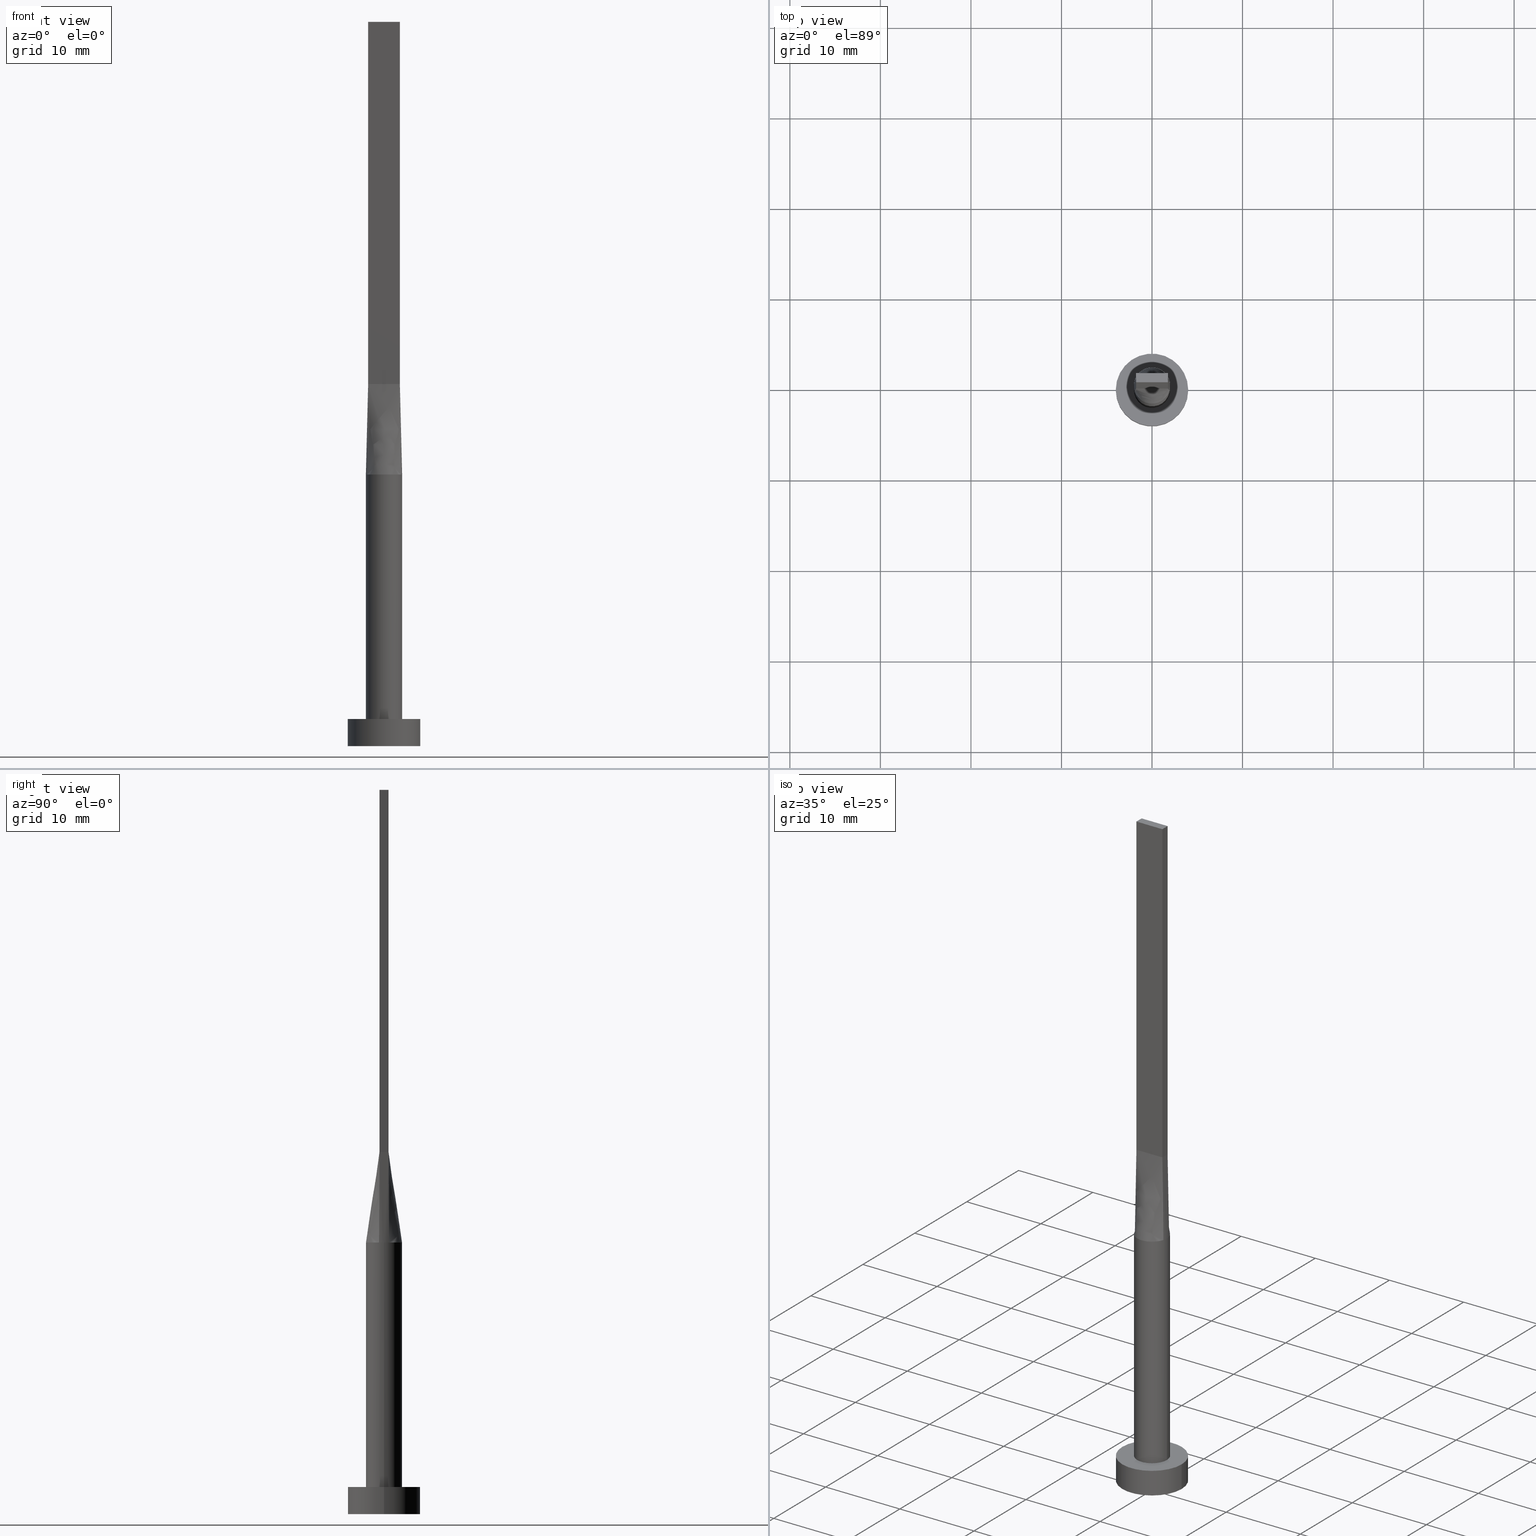
[diagram: canonical four-view strip — front | top / right | iso, engineering-drawing reading convention]
A machine part, canonical four-view strip (front | top / right | iso — engineering-drawing reading convention). The complete STEP part file that produces these views, byte-faithful:
ISO-10303-21;
HEADER;
FILE_DESCRIPTION (( 'STEP AP203' ),
    '1' );
FILE_NAME ('88ec.STEP',
    '2023-02-13T13:55:01',
    ( '' ),
    ( '' ),
    'SwSTEP 2.0',
    'SolidWorks 2019',
    '' );
FILE_SCHEMA (( 'CONFIG_CONTROL_DESIGN' ));
ENDSEC;

DATA;
#1 = LINE ( 'NONE', #316, #153 ) ;
#2 = ORIENTED_EDGE ( 'NONE', *, *, #421, .T. ) ;
#3 = FACE_OUTER_BOUND ( 'NONE', #441, .T. ) ;
#4 = CARTESIAN_POINT ( 'NONE',  ( 1.749999999999999778, 0.5000000000000002220, 80.00000000000000000 ) ) ;
#5 = APPROVAL ( #173, 'NEUR�EN�' ) ;
#6 = CARTESIAN_POINT ( 'NONE',  ( 0.9545234919502409987, 1.774214358793529955, 30.00000000000000355 ) ) ;
#7 = AXIS2_PLACEMENT_3D ( 'NONE', #301, #487, #79 ) ;
#8 = CARTESIAN_POINT ( 'NONE',  ( 0.000000000000000000, 0.000000000000000000, 0.000000000000000000 ) ) ;
#9 = PRODUCT_DEFINITION_FORMATION_WITH_SPECIFIED_SOURCE ( 'LIBOVOLN�', '', #111, .NOT_KNOWN. ) ;
#10 = CARTESIAN_POINT ( 'NONE',  ( 0.000000000000000000, 0.000000000000000000, 30.00000000000000000 ) ) ;
#11 = DIRECTION ( 'NONE',  ( 0.000000000000000000, -1.000000000000000000, 0.000000000000000000 ) ) ;
#12 = CARTESIAN_POINT ( 'NONE',  ( 0.000000000000000000, 0.000000000000000000, 3.000000000000000000 ) ) ;
#13 = FACE_OUTER_BOUND ( 'NONE', #107, .T. ) ;
#14 = PLANE ( 'NONE',  #362 ) ;
#15 = FACE_OUTER_BOUND ( 'NONE', #110, .T. ) ;
#16 = ORIENTED_EDGE ( 'NONE', *, *, #333, .T. ) ;
#17 = EDGE_CURVE ( 'NONE', #19, #537, #539, .T. ) ;
#18 = CARTESIAN_POINT ( 'NONE',  ( -1.812374357931689994, -0.8669367617086277678, 30.00000000000000355 ) ) ;
#19 = VERTEX_POINT ( 'NONE', #126 ) ;
#20 = CARTESIAN_POINT ( 'NONE',  ( 4.000000000000000000, 4.898587196589412829E-16, 0.000000000000000000 ) ) ;
#21 = EDGE_LOOP ( 'NONE', ( #294, #379, #245, #402 ) ) ;
#22 = PERSON_AND_ORGANIZATION_ROLE ( 'design_supplier' ) ;
#23 = CARTESIAN_POINT ( 'NONE',  ( -0.9545234919502401105, 1.774214358793530177, 30.00000000000000355 ) ) ;
#24 = EDGE_LOOP ( 'NONE', ( #290, #80 ) ) ;
#25 = DIRECTION ( 'NONE',  ( 1.000000000000000000, 0.000000000000000000, -0.000000000000000000 ) ) ;
#26 = EDGE_LOOP ( 'NONE', ( #467, #383, #65, #420 ) ) ;
#27 = CARTESIAN_POINT ( 'NONE',  ( 1.604166666666666519, -0.4999999999999997780, 39.99999999999999289 ) ) ;
#28 = AXIS2_PLACEMENT_3D ( 'NONE', #455, #460, #414 ) ;
#29 = CARTESIAN_POINT ( 'NONE',  ( -4.000000000000000000, 0.000000000000000000, 3.000000000000000000 ) ) ;
#30 = MECHANICAL_CONTEXT ( 'NONE', #73, 'mechanical' ) ;
#31 = AXIS2_PLACEMENT_3D ( 'NONE', #106, #284, #152 ) ;
#32 = AXIS2_PLACEMENT_3D ( 'NONE', #503, #359, #541 ) ;
#33 = DIRECTION ( 'NONE',  ( -0.000000000000000000, -0.000000000000000000, -1.000000000000000000 ) ) ;
#34 = ORIENTED_EDGE ( 'NONE', *, *, #113, .T. ) ;
#35 = B_SPLINE_SURFACE_WITH_KNOTS ( 'NONE', 3, 1, ( 
 ( #370, #191 ),
 ( #547, #137 ),
 ( #54, #416 ),
 ( #550, #50 ),
 ( #98, #93 ),
 ( #499, #237 ) ),
 .UNSPECIFIED., .F., .F., .F.,
 ( 4, 2, 4 ),
 ( 2, 2 ),
 ( 0.000000000000000000, 0.5000000000000000000, 1.000000000000000000 ),
 ( 0.000000000000000000, 1.000000000000000000 ),
 .UNSPECIFIED. ) ;
#36 = CARTESIAN_POINT ( 'NONE',  ( 1.749999999999999778, 0.5000000000000002220, 40.00000000000000000 ) ) ;
#37 = DIRECTION ( 'NONE',  ( -0.000000000000000000, -0.000000000000000000, -1.000000000000000000 ) ) ;
#38 = ADVANCED_FACE ( 'NONE', ( #447 ), #302, .F. ) ;
#39 = FACE_OUTER_BOUND ( 'NONE', #198, .T. ) ;
#40 = ORIENTED_EDGE ( 'NONE', *, *, #553, .F. ) ;
#41 = AXIS2_PLACEMENT_3D ( 'NONE', #304, #481, #119 ) ;
#42 = DIRECTION ( 'NONE',  ( 0.000000000000000000, 0.000000000000000000, 1.000000000000000000 ) ) ;
#43 = CARTESIAN_POINT ( 'NONE',  ( 1.750000000000000000, -0.4999999999999997780, 80.00000000000000000 ) ) ;
#44 = DIRECTION ( 'NONE',  ( 0.000000000000000000, 0.000000000000000000, 1.000000000000000000 ) ) ;
#45 = DIRECTION ( 'NONE',  ( -1.000000000000000000, 0.000000000000000000, 0.000000000000000000 ) ) ;
#46 = ADVANCED_FACE ( 'NONE', ( #395 ), #228, .T. ) ;
#47 = CARTESIAN_POINT ( 'NONE',  ( 0.5022746254375803909, 1.951069421695587947, 29.99999999999999645 ) ) ;
#48 = DIRECTION ( 'NONE',  ( -0.01730198768854152372, -0.004943425053868953992, -0.9998380887777591486 ) ) ;
#49 = DIRECTION ( 'NONE',  ( -0.000000000000000000, -0.000000000000000000, -1.000000000000000000 ) ) ;
#50 = CARTESIAN_POINT ( 'NONE',  ( 1.749999999999999778, 0.1666666666666669905, 39.99999999999999289 ) ) ;
#51 = CARTESIAN_POINT ( 'NONE',  ( -1.750000000000000000, -0.4999999999999995559, 40.00000000000000000 ) ) ;
#52 = CARTESIAN_POINT ( 'NONE',  ( 1.155438169178558461, 1.647245198242353714, 29.99999999999999645 ) ) ;
#53 = EDGE_CURVE ( 'NONE', #131, #555, #400, .T. ) ;
#54 = CARTESIAN_POINT ( 'NONE',  ( 1.999999999999999556, -0.1867399261870124894, 30.00000000000000355 ) ) ;
#55 = DIRECTION ( 'NONE',  ( -1.000000000000000000, 6.195440985631454085E-17, 0.000000000000000000 ) ) ;
#56 = VERTEX_POINT ( 'NONE', #404 ) ;
#57 = CARTESIAN_POINT ( 'NONE',  ( -1.749999999999999778, 0.5000000000000002220, 40.00000000000000000 ) ) ;
#58 = VERTEX_POINT ( 'NONE', #356 ) ;
#59 = PERSON_AND_ORGANIZATION ( #63, #88 ) ;
#60 = FACE_OUTER_BOUND ( 'NONE', #391, .T. ) ;
#61 = ORIENTED_EDGE ( 'NONE', *, *, #235, .F. ) ;
#62 = CARTESIAN_POINT ( 'NONE',  ( 0.000000000000000000, 0.000000000000000000, 0.000000000000000000 ) ) ;
#63 = PERSON ( 'NEUR�EN�', 'NEUR�EN�', 'NEUR�EN�', ('NEUR�EN�'), ('NEUR�EN�'), ('NEUR�EN�') ) ;
#64 = CARTESIAN_POINT ( 'NONE',  ( -1.155438169178558461, -1.647245198242353714, 30.00000000000000355 ) ) ;
#65 = ORIENTED_EDGE ( 'NONE', *, *, #174, .F. ) ;
#66 = VECTOR ( 'NONE', #45, 1000.000000000000000 ) ;
#67 = CARTESIAN_POINT ( 'NONE',  ( 1.923154993136894975, 0.5494733089275741778, 30.00000000000000000 ) ) ;
#68 = ORIENTED_EDGE ( 'NONE', *, *, #540, .T. ) ;
#69 = DATE_TIME_ROLE ( 'classification_date' ) ;
#70 = DIRECTION ( 'NONE',  ( 0.000000000000000000, 0.000000000000000000, 1.000000000000000000 ) ) ;
#71 = EDGE_CURVE ( 'NONE', #56, #334, #485, .T. ) ;
#72 = ORIENTED_EDGE ( 'NONE', *, *, #353, .F. ) ;
#73 = APPLICATION_CONTEXT ( 'configuration controlled 3d designs of mechanical parts and assemblies' ) ;
#74 = DATE_AND_TIME ( #164, #488 ) ;
#75 = CARTESIAN_POINT ( 'NONE',  ( -0.2916666666666685725, -0.4999999999999995559, 39.99999999999999289 ) ) ;
#76 = CARTESIAN_POINT ( 'NONE',  ( 1.750000000000000000, -0.4999999999999997780, 80.00000000000000000 ) ) ;
#77 = VECTOR ( 'NONE', #498, 1000.000000000000227 ) ;
#78 = CC_DESIGN_APPROVAL ( #209, ( #9 ) ) ;
#79 = DIRECTION ( 'NONE',  ( 1.000000000000000000, 0.000000000000000000, 0.000000000000000000 ) ) ;
#80 = ORIENTED_EDGE ( 'NONE', *, *, #388, .F. ) ;
#81 = PRODUCT_DEFINITION ( 'NEZN�M�', '', #9, #456 ) ;
#82 = CARTESIAN_POINT ( 'NONE',  ( 1.923154993136894975, 0.5494733089275741778, 30.00000000000000000 ) ) ;
#83 = DIRECTION ( 'NONE',  ( 1.000000000000000000, 0.000000000000000000, 0.000000000000000000 ) ) ;
#84 = CARTESIAN_POINT ( 'NONE',  ( 2.000000000000000000, 2.449293598294706414E-16, 3.000000000000000000 ) ) ;
#85 = ORIENTED_EDGE ( 'NONE', *, *, #372, .T. ) ;
#86 = AXIS2_PLACEMENT_3D ( 'NONE', #12, #49, #377 ) ;
#87 = CARTESIAN_POINT ( 'NONE',  ( -1.749999999999999778, 0.5000000000000002220, 80.00000000000000000 ) ) ;
#88 = ORGANIZATION ( 'NEUR�EN�', 'NEUR�EN�', '' ) ;
#89 = LINE ( 'NONE', #4, #280 ) ;
#90 = PLANE ( 'NONE',  #345 ) ;
#91 = CARTESIAN_POINT ( 'NONE',  ( 0.5833333333333323711, 0.5000000000000002220, 39.99999999999999289 ) ) ;
#92 = CARTESIAN_POINT ( 'NONE',  ( -0.5022746254375797248, 1.951069421695588169, 29.99999999999999645 ) ) ;
#93 = CARTESIAN_POINT ( 'NONE',  ( 1.749999999999999778, 0.3333333333333335924, 39.99999999999999289 ) ) ;
#94 = EDGE_CURVE ( 'NONE', #387, #101, #317, .T. ) ;
#95 = DIRECTION ( 'NONE',  ( 0.000000000000000000, 0.000000000000000000, 1.000000000000000000 ) ) ;
#96 = CARTESIAN_POINT ( 'NONE',  ( 1.879022738048942154, 0.7035303061092218480, 30.00000000000000355 ) ) ;
#97 = CC_DESIGN_PERSON_AND_ORGANIZATION_ASSIGNMENT ( #298, #22, ( #9 ) ) ;
#98 = CARTESIAN_POINT ( 'NONE',  ( 1.973362360690451567, 0.3733416268639386804, 30.00000000000000355 ) ) ;
#99 = ORIENTED_EDGE ( 'NONE', *, *, #203, .F. ) ;
#100 = CARTESIAN_POINT ( 'NONE',  ( -1.166666666666666519, 0.5000000000000002220, 39.99999999999999289 ) ) ;
#101 = VERTEX_POINT ( 'NONE', #29 ) ;
#102 = CARTESIAN_POINT ( 'NONE',  ( -1.749999999999999778, 0.3333333333333334259, 39.99999999999999289 ) ) ;
#103 = EDGE_CURVE ( 'NONE', #474, #537, #217, .T. ) ;
#104 = VERTEX_POINT ( 'NONE', #124 ) ;
#105 = DIRECTION ( 'NONE',  ( 2.168404344971009361E-16, 1.000000000000000000, 0.000000000000000000 ) ) ;
#106 = CARTESIAN_POINT ( 'NONE',  ( 0.000000000000000000, 0.000000000000000000, 3.000000000000000000 ) ) ;
#107 = EDGE_LOOP ( 'NONE', ( #559, #427, #398, #201, #120 ) ) ;
#108 = SECURITY_CLASSIFICATION_LEVEL ( 'unclassified' ) ;
#109 = CARTESIAN_POINT ( 'NONE',  ( -1.020833333333334592, -0.4999999999999995559, 39.99999999999999289 ) ) ;
#110 = EDGE_LOOP ( 'NONE', ( #308, #358, #469, #569 ) ) ;
#111 = PRODUCT ( '88ec', '88ec', '', ( #30 ) ) ;
#112 = APPROVAL_ROLE ( '' ) ;
#113 = EDGE_CURVE ( 'NONE', #104, #58, #89, .T. ) ;
#114 = CARTESIAN_POINT ( 'NONE',  ( -0.5833333333333339255, 0.5000000000000002220, 39.99999999999999289 ) ) ;
#115 = ORIENTED_EDGE ( 'NONE', *, *, #53, .F. ) ;
#116 = VECTOR ( 'NONE', #254, 1000.000000000000000 ) ;
#117 = PERSON_AND_ORGANIZATION ( #63, #88 ) ;
#118 = CC_DESIGN_PERSON_AND_ORGANIZATION_ASSIGNMENT ( #566, #160, ( #111 ) ) ;
#119 = DIRECTION ( 'NONE',  ( 1.000000000000000000, 0.000000000000000000, 0.000000000000000000 ) ) ;
#120 = ORIENTED_EDGE ( 'NONE', *, *, #103, .F. ) ;
#121 = APPROVAL_DATE_TIME ( #291, #5 ) ;
#122 = CARTESIAN_POINT ( 'NONE',  ( -4.000000000000000000, 0.000000000000000000, 0.000000000000000000 ) ) ;
#123 = EDGE_CURVE ( 'NONE', #354, #252, #192, .T. ) ;
#124 = CARTESIAN_POINT ( 'NONE',  ( 1.749999999999999778, 0.5000000000000002220, 80.00000000000000000 ) ) ;
#125 = CARTESIAN_POINT ( 'NONE',  ( -0.2514338042514540073, -1.999999999999999112, 29.99999999999999645 ) ) ;
#126 = CARTESIAN_POINT ( 'NONE',  ( 1.750000000000000000, -0.4999999999999997780, 80.00000000000000000 ) ) ;
#127 = EDGE_CURVE ( 'NONE', #493, #519, #278, .T. ) ;
#128 = CARTESIAN_POINT ( 'NONE',  ( 0.000000000000000000, 0.000000000000000000, 80.00000000000000000 ) ) ;
#129 = CARTESIAN_POINT ( 'NONE',  ( 2.000000000000000000, 2.449293598294706414E-16, 30.00000000000000000 ) ) ;
#130 = CARTESIAN_POINT ( 'NONE',  ( 1.616149014776643522, 1.193458220519943103, 30.00000000000000000 ) ) ;
#131 = VERTEX_POINT ( 'NONE', #144 ) ;
#132 = EDGE_CURVE ( 'NONE', #101, #354, #502, .T. ) ;
#133 = CARTESIAN_POINT ( 'NONE',  ( -1.486037034853319616, 1.356520562679218056, 30.00000000000000355 ) ) ;
#134 = DIRECTION ( 'NONE',  ( -1.000000000000000000, 0.000000000000000000, 0.000000000000000000 ) ) ;
#135 = VECTOR ( 'NONE', #549, 1000.000000000000000 ) ;
#136 = CYLINDRICAL_SURFACE ( 'NONE', #86, 4.000000000000000000 ) ;
#137 = CARTESIAN_POINT ( 'NONE',  ( 1.749999999999999778, -0.3333333333333330373, 39.99999999999999289 ) ) ;
#138 = CARTESIAN_POINT ( 'NONE',  ( 0.000000000000000000, 0.000000000000000000, 0.000000000000000000 ) ) ;
#139 = CYLINDRICAL_SURFACE ( 'NONE', #461, 2.000000000000000000 ) ;
#140 = DIRECTION ( 'NONE',  ( 1.000000000000000000, -6.195440985631454085E-17, 0.000000000000000000 ) ) ;
#141 = CARTESIAN_POINT ( 'NONE',  ( 1.749999999999999778, 0.5000000000000002220, 80.00000000000000000 ) ) ;
#142 = AXIS2_PLACEMENT_3D ( 'NONE', #580, #178, #297 ) ;
#143 = ADVANCED_FACE ( 'NONE', ( #496 ), #139, .T. ) ;
#144 = CARTESIAN_POINT ( 'NONE',  ( -1.923179810488875541, 0.5494804890868837388, 30.00000000000000000 ) ) ;
#145 = ADVANCED_FACE ( 'NONE', ( #13 ), #35, .T. ) ;
#146 = CARTESIAN_POINT ( 'NONE',  ( -0.2514338042514528415, 1.999999999999999556, 30.00000000000001066 ) ) ;
#147 = CARTESIAN_POINT ( 'NONE',  ( -1.879022738048942598, -0.7035303061092208488, 30.00000000000000355 ) ) ;
#148 = EDGE_LOOP ( 'NONE', ( #181, #340, #99, #34 ) ) ;
#149 = AXIS2_PLACEMENT_3D ( 'NONE', #43, #576, #258 ) ;
#150 = CARTESIAN_POINT ( 'NONE',  ( -1.749999999999999778, 0.5000000000000002220, 80.00000000000000000 ) ) ;
#151 = VECTOR ( 'NONE', #37, 1000.000000000000000 ) ;
#152 = DIRECTION ( 'NONE',  ( 1.000000000000000000, 0.000000000000000000, 0.000000000000000000 ) ) ;
#153 = VECTOR ( 'NONE', #458, 1000.000000000000000 ) ;
#154 = ORIENTED_EDGE ( 'NONE', *, *, #421, .F. ) ;
#155 = LOCAL_TIME ( 14, 55, 1.000000000000000000, #480 ) ;
#156 = APPROVAL_STATUS ( 'not_yet_approved' ) ;
#157 = B_SPLINE_SURFACE_WITH_KNOTS ( 'NONE', 3, 1, ( 
 ( #504, #230 ),
 ( #96, #360 ),
 ( #459, #417 ),
 ( #273, #542 ),
 ( #407, #277 ),
 ( #52, #239 ),
 ( #186, #91 ),
 ( #452, #511 ),
 ( #465, #246 ),
 ( #146, #197 ),
 ( #521, #331 ),
 ( #23, #114 ),
 ( #324, #339 ),
 ( #336, #425 ),
 ( #382, #100 ),
 ( #516, #286 ),
 ( #554, #564 ),
 ( #509, #161 ) ),
 .UNSPECIFIED., .F., .F., .F.,
 ( 4, 2, 2, 2, 2, 2, 2, 2, 4 ),
 ( 2, 2 ),
 ( 0.000000000000000000, 0.1249999999999999722, 0.2500000000000000000, 0.3750000000000000000, 0.5000000000000001110, 0.6250000000000001110, 0.7500000000000000000, 0.8750000000000000000, 1.000000000000000000 ),
 ( 0.000000000000000000, 1.000000000000000000 ),
 .UNSPECIFIED. ) ;
#158 = CARTESIAN_POINT ( 'NONE',  ( -1.923047895281646547, -0.5494422557947552521, 30.00000000000000000 ) ) ;
#159 = ORIENTED_EDGE ( 'NONE', *, *, #127, .F. ) ;
#160 = PERSON_AND_ORGANIZATION_ROLE ( 'design_owner' ) ;
#161 = CARTESIAN_POINT ( 'NONE',  ( -1.749999999999999778, 0.5000000000000002220, 40.00000000000000000 ) ) ;
#162 = EDGE_LOOP ( 'NONE', ( #2, #423, #61, #439 ) ) ;
#163 = APPROVAL ( #256, 'NEUR�EN�' ) ;
#164 = CALENDAR_DATE ( 2023, 13, 2 ) ;
#165 = VECTOR ( 'NONE', #48, 1000.000000000000227 ) ;
#166 = LINE ( 'NONE', #393, #535 ) ;
#167 = ORIENTED_EDGE ( 'NONE', *, *, #508, .F. ) ;
#168 = APPROVAL_PERSON_ORGANIZATION ( #211, #5, #112 ) ;
#169 = ADVANCED_FACE ( 'NONE', ( #270, #313 ), #371, .T. ) ;
#170 = APPROVAL_PERSON_ORGANIZATION ( #385, #163, #434 ) ;
#171 = CARTESIAN_POINT ( 'NONE',  ( 4.000000000000000000, 4.898587196589412829E-16, 3.000000000000000000 ) ) ;
#172 = ORIENTED_EDGE ( 'NONE', *, *, #319, .F. ) ;
#173 = APPROVAL_STATUS ( 'not_yet_approved' ) ;
#174 = EDGE_CURVE ( 'NONE', #464, #572, #410, .T. ) ;
#175 = CARTESIAN_POINT ( 'NONE',  ( -0.5833333333333350357, -0.4999999999999995559, 39.99999999999999289 ) ) ;
#176 = ORIENTED_EDGE ( 'NONE', *, *, #132, .T. ) ;
#177 = CARTESIAN_POINT ( 'NONE',  ( -2.000000000000000000, 0.000000000000000000, 30.00000000000000000 ) ) ;
#178 = DIRECTION ( 'NONE',  ( -0.000000000000000000, -0.000000000000000000, -1.000000000000000000 ) ) ;
#179 = CIRCLE ( 'NONE', #195, 2.000000000000000000 ) ;
#180 = CARTESIAN_POINT ( 'NONE',  ( -2.000000000000000000, 8.710755549421510381E-17, 30.00000000000000000 ) ) ;
#181 = ORIENTED_EDGE ( 'NONE', *, *, #235, .T. ) ;
#182 = ADVANCED_FACE ( 'NONE', ( #368 ), #14, .F. ) ;
#183 = FACE_OUTER_BOUND ( 'NONE', #24, .T. ) ;
#184 = EDGE_LOOP ( 'NONE', ( #489, #522, #176, #482 ) ) ;
#185 = CARTESIAN_POINT ( 'NONE',  ( -1.812374357931688884, 0.8669367617086288780, 30.00000000000001066 ) ) ;
#186 = CARTESIAN_POINT ( 'NONE',  ( 0.9545234919502409987, 1.774214358793529955, 30.00000000000000355 ) ) ;
#187 = CARTESIAN_POINT ( 'NONE',  ( -1.616149014776643966, 1.193458220519943103, 30.00000000000000711 ) ) ;
#188 = CARTESIAN_POINT ( 'NONE',  ( -1.749999999999999778, 0.5000000000000002220, 80.00000000000000000 ) ) ;
#189 = DIRECTION ( 'NONE',  ( 1.000000000000000000, 3.552713678800500929E-15, 0.000000000000000000 ) ) ;
#190 = LINE ( 'NONE', #240, #66 ) ;
#191 = CARTESIAN_POINT ( 'NONE',  ( 1.750000000000000000, -0.4999999999999997780, 40.00000000000000000 ) ) ;
#192 = CIRCLE ( 'NONE', #341, 4.000000000000000000 ) ;
#193 = AXIS2_PLACEMENT_3D ( 'NONE', #399, #70, #357 ) ;
#194 = CARTESIAN_POINT ( 'NONE',  ( -1.973362360690451567, 0.3733416268639390134, 30.00000000000000000 ) ) ;
#195 = AXIS2_PLACEMENT_3D ( 'NONE', #10, #42, #189 ) ;
#196 = CIRCLE ( 'NONE', #457, 2.000000000000000000 ) ;
#197 = CARTESIAN_POINT ( 'NONE',  ( -0.1458333333333340365, 0.5000000000000002220, 39.99999999999999289 ) ) ;
#198 = EDGE_LOOP ( 'NONE', ( #268, #205, #68, #223 ) ) ;
#199 = CARTESIAN_POINT ( 'NONE',  ( -1.155438169178558017, 1.647245198242353936, 30.00000000000000711 ) ) ;
#200 = CARTESIAN_POINT ( 'NONE',  ( -1.166666666666667851, -0.4999999999999995559, 39.99999999999999289 ) ) ;
#201 = ORIENTED_EDGE ( 'NONE', *, *, #372, .F. ) ;
#202 = COORDINATED_UNIVERSAL_TIME_OFFSET ( 1, 0, .AHEAD. ) ;
#203 = EDGE_CURVE ( 'NONE', #104, #464, #190, .T. ) ;
#204 = CARTESIAN_POINT ( 'NONE',  ( -1.973362360690451345, -0.3733416268639377367, 30.00000000000000355 ) ) ;
#205 = ORIENTED_EDGE ( 'NONE', *, *, #174, .T. ) ;
#206 = DATE_AND_TIME ( #470, #155 ) ;
#207 = B_SPLINE_SURFACE_WITH_KNOTS ( 'NONE', 3, 1, ( 
 ( #378, #208 ),
 ( #147, #326 ),
 ( #18, #518 ),
 ( #472, #200 ),
 ( #558, #109 ),
 ( #64, #251 ),
 ( #429, #175 ),
 ( #307, #75 ),
 ( #125, #435 ),
 ( #216, #533 ),
 ( #397, #567 ),
 ( #224, #344 ),
 ( #492, #484 ),
 ( #259, #257 ),
 ( #440, #265 ),
 ( #212, #349 ),
 ( #530, #27 ),
 ( #352, #220 ) ),
 .UNSPECIFIED., .F., .F., .F.,
 ( 4, 2, 2, 2, 2, 2, 2, 2, 4 ),
 ( 2, 2 ),
 ( 0.000000000000000000, 0.1249999999999999722, 0.2500000000000000000, 0.3750000000000000000, 0.5000000000000001110, 0.6250000000000001110, 0.7500000000000000000, 0.8750000000000000000, 1.000000000000000000 ),
 ( 0.000000000000000000, 1.000000000000000000 ),
 .UNSPECIFIED. ) ;
#208 = CARTESIAN_POINT ( 'NONE',  ( -1.750000000000000000, -0.4999999999999995559, 40.00000000000000000 ) ) ;
#209 = APPROVAL ( #156, 'NEUR�EN�' ) ;
#210 = ORIENTED_EDGE ( 'NONE', *, *, #94, .T. ) ;
#211 = PERSON_AND_ORGANIZATION ( #63, #88 ) ;
#212 = CARTESIAN_POINT ( 'NONE',  ( 1.812374357931689106, -0.8669367617086289890, 30.00000000000001066 ) ) ;
#213 = ORIENTED_EDGE ( 'NONE', *, *, #17, .F. ) ;
#214 = ADVANCED_FACE ( 'NONE', ( #318 ), #157, .T. ) ;
#215 = COORDINATED_UNIVERSAL_TIME_OFFSET ( 1, 0, .AHEAD. ) ;
#216 = CARTESIAN_POINT ( 'NONE',  ( 0.2514338042514523419, -2.000000000000000444, 30.00000000000000000 ) ) ;
#217 = LINE ( 'NONE', #350, #473 ) ;
#218 = PERSON_AND_ORGANIZATION ( #63, #88 ) ;
#219 = EDGE_CURVE ( 'NONE', #101, #387, #282, .T. ) ;
#220 = CARTESIAN_POINT ( 'NONE',  ( 1.750000000000000000, -0.4999999999999997780, 40.00000000000000000 ) ) ;
#221 = ORIENTED_EDGE ( 'NONE', *, *, #432, .F. ) ;
#222 = DIRECTION ( 'NONE',  ( -2.168404344971008868E-16, 1.000000000000000000, -0.000000000000000000 ) ) ;
#223 = ORIENTED_EDGE ( 'NONE', *, *, #319, .T. ) ;
#224 = CARTESIAN_POINT ( 'NONE',  ( 0.9545234919502404436, -1.774214358793530177, 30.00000000000001066 ) ) ;
#225 = ORIENTED_EDGE ( 'NONE', *, *, #312, .T. ) ;
#226 = CIRCLE ( 'NONE', #7, 2.000000000000000000 ) ;
#227 = CARTESIAN_POINT ( 'NONE',  ( 1.750000000000000000, -0.4999999999999997780, 40.00000000000000000 ) ) ;
#228 = CYLINDRICAL_SURFACE ( 'NONE', #142, 4.000000000000000000 ) ;
#229 = DIRECTION ( 'NONE',  ( 1.000000000000000000, 0.000000000000000000, 0.000000000000000000 ) ) ;
#230 = CARTESIAN_POINT ( 'NONE',  ( 1.749999999999998890, 0.5000000000000002220, 40.00000000000000000 ) ) ;
#231 = EDGE_CURVE ( 'NONE', #464, #555, #289, .T. ) ;
#232 = UNCERTAINTY_MEASURE_WITH_UNIT (LENGTH_MEASURE( 1.000000000000000082E-05 ), #475, 'distance_accuracy_value', 'NONE');
#233 = CARTESIAN_POINT ( 'NONE',  ( 1.836523947640823051, 0.5247211278973783477, 35.00000000000000000 ) ) ;
#234 = DIRECTION ( 'NONE',  ( -0.000000000000000000, -0.000000000000000000, -1.000000000000000000 ) ) ;
#235 = EDGE_CURVE ( 'NONE', #58, #555, #279, .T. ) ;
#236 = DIRECTION ( 'NONE',  ( 0.000000000000000000, 0.000000000000000000, 1.000000000000000000 ) ) ;
#237 = CARTESIAN_POINT ( 'NONE',  ( 1.749999999999999778, 0.5000000000000002220, 40.00000000000000000 ) ) ;
#238 = LINE ( 'NONE', #369, #506 ) ;
#239 = CARTESIAN_POINT ( 'NONE',  ( 0.7291666666666657415, 0.5000000000000002220, 39.99999999999999289 ) ) ;
#240 = CARTESIAN_POINT ( 'NONE',  ( 1.749999999999999778, 0.5000000000000002220, 80.00000000000000000 ) ) ;
#241 = ADVANCED_FACE ( 'NONE', ( #462 ), #293, .F. ) ;
#242 = CARTESIAN_POINT ( 'NONE',  ( -1.749999999999999778, 0.1666666666666667129, 39.99999999999999289 ) ) ;
#243 = ORIENTED_EDGE ( 'NONE', *, *, #392, .F. ) ;
#244 = CARTESIAN_POINT ( 'NONE',  ( -1.750000000000000000, -0.4999999999999995559, 80.00000000000000000 ) ) ;
#245 = ORIENTED_EDGE ( 'NONE', *, *, #388, .T. ) ;
#246 = CARTESIAN_POINT ( 'NONE',  ( 0.1458333333333326209, 0.5000000000000002220, 40.00000000000000000 ) ) ;
#247 = ORIENTED_EDGE ( 'NONE', *, *, #392, .T. ) ;
#248 = VECTOR ( 'NONE', #578, 1000.000000000000227 ) ;
#249 = CALENDAR_DATE ( 2023, 13, 2 ) ;
#250 = VECTOR ( 'NONE', #478, 1000.000000000000000 ) ;
#251 = CARTESIAN_POINT ( 'NONE',  ( -0.7291666666666681840, -0.4999999999999995559, 39.99999999999999289 ) ) ;
#252 = VERTEX_POINT ( 'NONE', #20 ) ;
#253 = CALENDAR_DATE ( 2023, 13, 2 ) ;
#254 = DIRECTION ( 'NONE',  ( -0.000000000000000000, -0.000000000000000000, -1.000000000000000000 ) ) ;
#255 = EDGE_LOOP ( 'NONE', ( #225, #213, #517, #512 ) ) ;
#256 = APPROVAL_STATUS ( 'not_yet_approved' ) ;
#257 = CARTESIAN_POINT ( 'NONE',  ( 1.020833333333331927, -0.4999999999999995559, 39.99999999999999289 ) ) ;
#258 = DIRECTION ( 'NONE',  ( 2.168404344971008868E-16, -1.000000000000000000, 0.000000000000000000 ) ) ;
#259 = CARTESIAN_POINT ( 'NONE',  ( 1.486037034853319616, -1.356520562679219166, 30.00000000000001066 ) ) ;
#260 = EDGE_LOOP ( 'NONE', ( #287, #210 ) ) ;
#261 = LOCAL_TIME ( 14, 55, 1.000000000000000000, #202 ) ;
#262 = LOCAL_TIME ( 14, 55, 1.000000000000000000, #215 ) ;
#263 = DIRECTION ( 'NONE',  ( -2.168404344971008868E-16, 1.000000000000000000, 0.000000000000000000 ) ) ;
#264 = CARTESIAN_POINT ( 'NONE',  ( -1.836523947640823051, 0.5247211278973779036, 35.00000000000000000 ) ) ;
#265 = CARTESIAN_POINT ( 'NONE',  ( 1.166666666666665408, -0.4999999999999995559, 39.99999999999999289 ) ) ;
#266 = VERTEX_POINT ( 'NONE', #67 ) ;
#267 = DIRECTION ( 'NONE',  ( 0.000000000000000000, 0.000000000000000000, 1.000000000000000000 ) ) ;
#268 = ORIENTED_EDGE ( 'NONE', *, *, #203, .T. ) ;
#269 = FACE_OUTER_BOUND ( 'NONE', #26, .T. ) ;
#270 = FACE_BOUND ( 'NONE', #337, .T. ) ;
#271 = ADVANCED_FACE ( 'NONE', ( #60 ), #384, .T. ) ;
#272 = CARTESIAN_POINT ( 'NONE',  ( 1.486037034853319616, 1.356520562679217834, 29.99999999999999289 ) ) ;
#273 = CARTESIAN_POINT ( 'NONE',  ( 1.616149014776643522, 1.193458220519943103, 30.00000000000000000 ) ) ;
#274 = DIRECTION ( 'NONE',  ( 1.000000000000000000, 0.000000000000000000, 0.000000000000000000 ) ) ;
#275 = CARTESIAN_POINT ( 'NONE',  ( 0.000000000000000000, 0.000000000000000000, 30.00000000000000000 ) ) ;
#276 = DIRECTION ( 'NONE',  ( 1.000000000000000000, 0.000000000000000000, -0.000000000000000000 ) ) ;
#277 = CARTESIAN_POINT ( 'NONE',  ( 1.020833333333332371, 0.5000000000000002220, 39.99999999999999289 ) ) ;
#278 = LINE ( 'NONE', #364, #165 ) ;
#279 = LINE ( 'NONE', #57, #250 ) ;
#280 = VECTOR ( 'NONE', #310, 1000.000000000000000 ) ;
#281 = ORIENTED_EDGE ( 'NONE', *, *, #17, .T. ) ;
#282 = CIRCLE ( 'NONE', #31, 4.000000000000000000 ) ;
#283 = B_SPLINE_CURVE_WITH_KNOTS ( 'NONE', 3,
 ( #82, #442, #538, #130, #272, #451, #6, #47, #415, #548, #92, #514, #199, #133, #187, #185, #309, #501 ),
 .UNSPECIFIED., .F., .F.,
 ( 4, 2, 2, 2, 2, 2, 2, 2, 4 ),
 ( 0.000000000000000000, 0.1249999999999999722, 0.2500000000000000000, 0.3750000000000000000, 0.5000000000000001110, 0.6250000000000001110, 0.7500000000000000000, 0.8750000000000000000, 1.000000000000000000 ),
 .UNSPECIFIED. ) ;
#284 = DIRECTION ( 'NONE',  ( 0.000000000000000000, 0.000000000000000000, 1.000000000000000000 ) ) ;
#285 = EDGE_LOOP ( 'NONE', ( #565, #433, #376, #72, #247, #16 ) ) ;
#286 = CARTESIAN_POINT ( 'NONE',  ( -1.458333333333333259, 0.5000000000000002220, 39.99999999999999289 ) ) ;
#287 = ORIENTED_EDGE ( 'NONE', *, *, #219, .T. ) ;
#288 = APPLICATION_PROTOCOL_DEFINITION ( 'international standard', 'config_control_design', 1994, #466 ) ;
#289 = LINE ( 'NONE', #386, #116 ) ;
#290 = ORIENTED_EDGE ( 'NONE', *, *, #123, .F. ) ;
#291 = DATE_AND_TIME ( #253, #366 ) ;
#292 = VECTOR ( 'NONE', #222, 1000.000000000000000 ) ;
#293 = PLANE ( 'NONE',  #437 ) ;
#294 = ORIENTED_EDGE ( 'NONE', *, *, #94, .F. ) ;
#295 = PERSON_AND_ORGANIZATION_ROLE ( 'classification_officer' ) ;
#296 = CARTESIAN_POINT ( 'NONE',  ( 4.000000000000000000, 4.898587196589412829E-16, 3.000000000000000000 ) ) ;
#297 = DIRECTION ( 'NONE',  ( -1.000000000000000000, 0.000000000000000000, 0.000000000000000000 ) ) ;
#298 = PERSON_AND_ORGANIZATION ( #63, #88 ) ;
#299 = CARTESIAN_POINT ( 'NONE',  ( -1.750000000000000000, -0.4999999999999995559, 80.00000000000000000 ) ) ;
#300 = ORIENTED_EDGE ( 'NONE', *, *, #551, .F. ) ;
#301 = CARTESIAN_POINT ( 'NONE',  ( 0.000000000000000000, 0.000000000000000000, 30.00000000000000000 ) ) ;
#302 = PLANE ( 'NONE',  #149 ) ;
#303 = ADVANCED_FACE ( 'NONE', ( #15 ), #207, .T. ) ;
#304 = CARTESIAN_POINT ( 'NONE',  ( 0.000000000000000000, 0.000000000000000000, 3.000000000000000000 ) ) ;
#305 = DIRECTION ( 'NONE',  ( -0.000000000000000000, -0.000000000000000000, -1.000000000000000000 ) ) ;
#306 = CC_DESIGN_DATE_AND_TIME_ASSIGNMENT ( #523, #380, ( #81 ) ) ;
#307 = CARTESIAN_POINT ( 'NONE',  ( -0.5022746254375808350, -1.951069421695587724, 29.99999999999999289 ) ) ;
#308 = ORIENTED_EDGE ( 'NONE', *, *, #557, .T. ) ;
#309 = CARTESIAN_POINT ( 'NONE',  ( -1.879022738048941710, 0.7035303061092221810, 30.00000000000000000 ) ) ;
#310 = DIRECTION ( 'NONE',  ( -0.000000000000000000, -0.000000000000000000, -1.000000000000000000 ) ) ;
#311 = PLANE ( 'NONE',  #381 ) ;
#312 = EDGE_CURVE ( 'NONE', #493, #537, #166, .T. ) ;
#313 = FACE_OUTER_BOUND ( 'NONE', #260, .T. ) ;
#314 = CARTESIAN_POINT ( 'NONE',  ( 0.000000000000000000, 0.000000000000000000, 3.000000000000000000 ) ) ;
#315 = CARTESIAN_POINT ( 'NONE',  ( -4.000000000000000000, 0.000000000000000000, 3.000000000000000000 ) ) ;
#316 = CARTESIAN_POINT ( 'NONE',  ( -1.749999999999999778, 0.5000000000000002220, 40.00000000000000000 ) ) ;
#317 = CIRCLE ( 'NONE', #408, 4.000000000000000000 ) ;
#318 = FACE_OUTER_BOUND ( 'NONE', #162, .T. ) ;
#319 = EDGE_CURVE ( 'NONE', #19, #104, #438, .T. ) ;
#320 = CIRCLE ( 'NONE', #32, 2.000000000000000000 ) ;
#321 = DIRECTION ( 'NONE',  ( -0.000000000000000000, -0.000000000000000000, -1.000000000000000000 ) ) ;
#322 = VERTEX_POINT ( 'NONE', #180 ) ;
#323 = CC_DESIGN_PERSON_AND_ORGANIZATION_ASSIGNMENT ( #117, #295, ( #411 ) ) ;
#324 = CARTESIAN_POINT ( 'NONE',  ( -1.155438169178558017, 1.647245198242353936, 30.00000000000000711 ) ) ;
#325 = EDGE_CURVE ( 'NONE', #572, #493, #571, .T. ) ;
#326 = CARTESIAN_POINT ( 'NONE',  ( -1.604166666666666963, -0.4999999999999995559, 39.99999999999999289 ) ) ;
#327 = VERTEX_POINT ( 'NONE', #575 ) ;
#328 = DIRECTION ( 'NONE',  ( 1.000000000000000000, -2.168404344971009361E-16, 0.000000000000000000 ) ) ;
#329 = CIRCLE ( 'NONE', #343, 2.000000000000000000 ) ;
#330 = AXIS2_PLACEMENT_3D ( 'NONE', #128, #267, #25 ) ;
#331 = CARTESIAN_POINT ( 'NONE',  ( -0.2916666666666674623, 0.5000000000000002220, 39.99999999999999289 ) ) ;
#332 = APPROVAL_PERSON_ORGANIZATION ( #389, #209, #335 ) ;
#333 = EDGE_CURVE ( 'NONE', #327, #334, #476, .T. ) ;
#334 = VERTEX_POINT ( 'NONE', #84 ) ;
#335 = APPROVAL_ROLE ( '' ) ;
#336 = CARTESIAN_POINT ( 'NONE',  ( -1.486037034853319616, 1.356520562679218056, 30.00000000000000355 ) ) ;
#337 = EDGE_LOOP ( 'NONE', ( #443, #167 ) ) ;
#338 = COORDINATED_UNIVERSAL_TIME_OFFSET ( 1, 0, .AHEAD. ) ;
#339 = CARTESIAN_POINT ( 'NONE',  ( -0.7291666666666671848, 0.5000000000000002220, 39.99999999999999289 ) ) ;
#340 = ORIENTED_EDGE ( 'NONE', *, *, #231, .F. ) ;
#341 = AXIS2_PLACEMENT_3D ( 'NONE', #8, #544, #507 ) ;
#342 = APPROVAL_DATE_TIME ( #74, #209 ) ;
#343 = AXIS2_PLACEMENT_3D ( 'NONE', #543, #95, #363 ) ;
#344 = CARTESIAN_POINT ( 'NONE',  ( 0.5833333333333317050, -0.4999999999999995559, 39.99999999999999289 ) ) ;
#345 = AXIS2_PLACEMENT_3D ( 'NONE', #150, #328, #105 ) ;
#346 = ORIENTED_EDGE ( 'NONE', *, *, #71, .T. ) ;
#347 =( GEOMETRIC_REPRESENTATION_CONTEXT ( 3 ) GLOBAL_UNCERTAINTY_ASSIGNED_CONTEXT ( ( #232 ) ) GLOBAL_UNIT_ASSIGNED_CONTEXT ( ( #475, #570, #351 ) ) REPRESENTATION_CONTEXT ( 'NONE', 'WORKASPACE' ) );
#348 = EDGE_CURVE ( 'NONE', #387, #252, #390, .T. ) ;
#349 = CARTESIAN_POINT ( 'NONE',  ( 1.458333333333332815, -0.4999999999999996669, 39.99999999999999289 ) ) ;
#350 = CARTESIAN_POINT ( 'NONE',  ( 1.836523947640823051, -0.5247211278973777926, 35.00000000000000000 ) ) ;
#351 =( NAMED_UNIT ( * ) SI_UNIT ( $, .STERADIAN. ) SOLID_ANGLE_UNIT ( ) );
#352 = CARTESIAN_POINT ( 'NONE',  ( 1.923047895281646325, -0.5494422557947558072, 30.00000000000000000 ) ) ;
#353 = EDGE_CURVE ( 'NONE', #322, #519, #226, .T. ) ;
#354 = VERTEX_POINT ( 'NONE', #122 ) ;
#355 = DIRECTION ( 'NONE',  ( -0.000000000000000000, -0.000000000000000000, -1.000000000000000000 ) ) ;
#356 = CARTESIAN_POINT ( 'NONE',  ( 1.749999999999999778, 0.5000000000000002220, 40.00000000000000000 ) ) ;
#357 = DIRECTION ( 'NONE',  ( 1.000000000000000000, 0.000000000000000000, 0.000000000000000000 ) ) ;
#358 = ORIENTED_EDGE ( 'NONE', *, *, #103, .T. ) ;
#359 = DIRECTION ( 'NONE',  ( 0.000000000000000000, 0.000000000000000000, 1.000000000000000000 ) ) ;
#360 = CARTESIAN_POINT ( 'NONE',  ( 1.604166666666665630, 0.5000000000000002220, 39.99999999999999289 ) ) ;
#361 = DATE_AND_TIME ( #483, #262 ) ;
#362 = AXIS2_PLACEMENT_3D ( 'NONE', #141, #11, #449 ) ;
#363 = DIRECTION ( 'NONE',  ( 1.000000000000000000, 0.000000000000000000, 0.000000000000000000 ) ) ;
#364 = CARTESIAN_POINT ( 'NONE',  ( -1.836523947640823273, -0.5247211278973773485, 35.00000000000000000 ) ) ;
#365 = VECTOR ( 'NONE', #33, 1000.000000000000000 ) ;
#366 = LOCAL_TIME ( 14, 55, 1.000000000000000000, #338 ) ;
#367 = CARTESIAN_POINT ( 'NONE',  ( 1.923186205402444449, -0.5494823831763672173, 30.00000000000000000 ) ) ;
#368 = FACE_OUTER_BOUND ( 'NONE', #148, .T. ) ;
#369 = CARTESIAN_POINT ( 'NONE',  ( -1.750000000000000000, -0.4999999999999995559, 80.00000000000000000 ) ) ;
#370 = CARTESIAN_POINT ( 'NONE',  ( 1.923047895281646102, -0.5494422557947566954, 30.00000000000000000 ) ) ;
#371 = PLANE ( 'NONE',  #28 ) ;
#372 = EDGE_CURVE ( 'NONE', #537, #58, #401, .T. ) ;
#373 = CIRCLE ( 'NONE', #193, 4.000000000000000000 ) ;
#374 = CARTESIAN_POINT ( 'NONE',  ( -1.999999999999999556, -0.1867399261870113791, 30.00000000000000000 ) ) ;
#375 = CARTESIAN_POINT ( 'NONE',  ( -1.999999999999999556, 0.1867399261870127114, 30.00000000000000355 ) ) ;
#376 = ORIENTED_EDGE ( 'NONE', *, *, #557, .F. ) ;
#377 = DIRECTION ( 'NONE',  ( -1.000000000000000000, 0.000000000000000000, 0.000000000000000000 ) ) ;
#378 = CARTESIAN_POINT ( 'NONE',  ( -1.923047895281646547, -0.5494422557947552521, 30.00000000000000000 ) ) ;
#379 = ORIENTED_EDGE ( 'NONE', *, *, #348, .T. ) ;
#380 = DATE_TIME_ROLE ( 'creation_date' ) ;
#381 = AXIS2_PLACEMENT_3D ( 'NONE', #138, #403, #276 ) ;
#382 = CARTESIAN_POINT ( 'NONE',  ( -1.616149014776643966, 1.193458220519943103, 30.00000000000000711 ) ) ;
#383 = ORIENTED_EDGE ( 'NONE', *, *, #325, .F. ) ;
#384 = B_SPLINE_SURFACE_WITH_KNOTS ( 'NONE', 3, 1, ( 
 ( #561, #431 ),
 ( #194, #102 ),
 ( #375, #242 ),
 ( #374, #552 ),
 ( #204, #422 ),
 ( #158, #419 ) ),
 .UNSPECIFIED., .F., .F., .F.,
 ( 4, 2, 4 ),
 ( 2, 2 ),
 ( 0.000000000000000000, 0.5000000000000000000, 1.000000000000000000 ),
 ( 0.000000000000000000, 1.000000000000000000 ),
 .UNSPECIFIED. ) ;
#385 = PERSON_AND_ORGANIZATION ( #63, #88 ) ;
#386 = CARTESIAN_POINT ( 'NONE',  ( -1.749999999999999778, 0.5000000000000002220, 80.00000000000000000 ) ) ;
#387 = VERTEX_POINT ( 'NONE', #171 ) ;
#388 = EDGE_CURVE ( 'NONE', #252, #354, #373, .T. ) ;
#389 = PERSON_AND_ORGANIZATION ( #63, #88 ) ;
#390 = LINE ( 'NONE', #296, #513 ) ;
#391 = EDGE_LOOP ( 'NONE', ( #526, #563, #159, #300, #115 ) ) ;
#392 = EDGE_CURVE ( 'NONE', #322, #327, #577, .T. ) ;
#393 = CARTESIAN_POINT ( 'NONE',  ( -1.750000000000000000, -0.4999999999999995559, 40.00000000000000000 ) ) ;
#394 = AXIS2_PLACEMENT_3D ( 'NONE', #314, #236, #274 ) ;
#395 = FACE_OUTER_BOUND ( 'NONE', #184, .T. ) ;
#396 = APPLICATION_PROTOCOL_DEFINITION ( 'international standard', 'config_control_design', 1994, #73 ) ;
#397 = CARTESIAN_POINT ( 'NONE',  ( 0.5022746254375793917, -1.951069421695588169, 29.99999999999999645 ) ) ;
#398 = ORIENTED_EDGE ( 'NONE', *, *, #471, .T. ) ;
#399 = CARTESIAN_POINT ( 'NONE',  ( 0.000000000000000000, 0.000000000000000000, 0.000000000000000000 ) ) ;
#400 = LINE ( 'NONE', #264, #248 ) ;
#401 = LINE ( 'NONE', #36, #292 ) ;
#402 = ORIENTED_EDGE ( 'NONE', *, *, #132, .F. ) ;
#403 = DIRECTION ( 'NONE',  ( 0.000000000000000000, 0.000000000000000000, 1.000000000000000000 ) ) ;
#404 = CARTESIAN_POINT ( 'NONE',  ( 2.000000000000000000, 2.759698982225367658E-17, 30.00000000000000000 ) ) ;
#405 = APPROVAL_DATE_TIME ( #361, #163 ) ;
#406 = CYLINDRICAL_SURFACE ( 'NONE', #477, 2.000000000000000000 ) ;
#407 = CARTESIAN_POINT ( 'NONE',  ( 1.486037034853319616, 1.356520562679217834, 29.99999999999999289 ) ) ;
#408 = AXIS2_PLACEMENT_3D ( 'NONE', #491, #436, #83 ) ;
#409 = LINE ( 'NONE', #233, #77 ) ;
#410 = LINE ( 'NONE', #188, #135 ) ;
#411 = SECURITY_CLASSIFICATION ( '', '', #108 ) ;
#412 = DIRECTION ( 'NONE',  ( -1.000000000000000000, 0.000000000000000000, 0.000000000000000000 ) ) ;
#413 = ADVANCED_FACE ( 'NONE', ( #39 ), #536, .T. ) ;
#414 = DIRECTION ( 'NONE',  ( 1.000000000000000000, 0.000000000000000000, -0.000000000000000000 ) ) ;
#415 = CARTESIAN_POINT ( 'NONE',  ( 0.2514338042514535632, 1.999999999999999556, 30.00000000000000355 ) ) ;
#416 = CARTESIAN_POINT ( 'NONE',  ( 1.749999999999999778, -0.1666666666666663243, 39.99999999999999289 ) ) ;
#417 = CARTESIAN_POINT ( 'NONE',  ( 1.458333333333332371, 0.5000000000000002220, 39.99999999999999289 ) ) ;
#418 = AXIS2_PLACEMENT_3D ( 'NONE', #62, #532, #574 ) ;
#419 = CARTESIAN_POINT ( 'NONE',  ( -1.750000000000000000, -0.4999999999999995559, 40.00000000000000000 ) ) ;
#420 = ORIENTED_EDGE ( 'NONE', *, *, #231, .T. ) ;
#421 = EDGE_CURVE ( 'NONE', #266, #131, #283, .T. ) ;
#422 = CARTESIAN_POINT ( 'NONE',  ( -1.749999999999999778, -0.3333333333333330373, 39.99999999999999289 ) ) ;
#423 = ORIENTED_EDGE ( 'NONE', *, *, #53, .T. ) ;
#424 = PERSON_AND_ORGANIZATION_ROLE ( 'creator' ) ;
#425 = CARTESIAN_POINT ( 'NONE',  ( -1.020833333333333481, 0.5000000000000002220, 39.99999999999999289 ) ) ;
#426 = CLOSED_SHELL ( 'NONE', ( #510, #463, #46, #169, #500, #143, #303, #145, #271, #214, #182, #528, #241, #38, #413 ) ) ;
#427 = ORIENTED_EDGE ( 'NONE', *, *, #553, .T. ) ;
#428 = COORDINATED_UNIVERSAL_TIME_OFFSET ( 1, 0, .AHEAD. ) ;
#429 = CARTESIAN_POINT ( 'NONE',  ( -0.9545234919502417759, -1.774214358793529067, 30.00000000000000355 ) ) ;
#430 = EDGE_LOOP ( 'NONE', ( #85, #479, #172, #281 ) ) ;
#431 = CARTESIAN_POINT ( 'NONE',  ( -1.749999999999999778, 0.5000000000000002220, 40.00000000000000000 ) ) ;
#432 = EDGE_CURVE ( 'NONE', #131, #322, #329, .T. ) ;
#433 = ORIENTED_EDGE ( 'NONE', *, *, #520, .F. ) ;
#434 = APPROVAL_ROLE ( '' ) ;
#435 = CARTESIAN_POINT ( 'NONE',  ( -0.1458333333333353687, -0.4999999999999995559, 40.00000000000000000 ) ) ;
#436 = DIRECTION ( 'NONE',  ( 0.000000000000000000, 0.000000000000000000, 1.000000000000000000 ) ) ;
#437 = AXIS2_PLACEMENT_3D ( 'NONE', #244, #468, #55 ) ;
#438 = LINE ( 'NONE', #525, #505 ) ;
#439 = ORIENTED_EDGE ( 'NONE', *, *, #471, .F. ) ;
#440 = CARTESIAN_POINT ( 'NONE',  ( 1.616149014776643522, -1.193458220519943547, 30.00000000000000711 ) ) ;
#441 = EDGE_LOOP ( 'NONE', ( #40, #346, #534, #243, #221, #154 ) ) ;
#442 = CARTESIAN_POINT ( 'NONE',  ( 1.879022738048942154, 0.7035303061092218480, 30.00000000000000355 ) ) ;
#443 = ORIENTED_EDGE ( 'NONE', *, *, #333, .F. ) ;
#444 = PRODUCT_DEFINITION_SHAPE ( 'NONE', 'NONE',  #81 ) ;
#445 = VECTOR ( 'NONE', #305, 1000.000000000000000 ) ;
#446 = CARTESIAN_POINT ( 'NONE',  ( 0.000000000000000000, 0.000000000000000000, 30.00000000000000000 ) ) ;
#447 = FACE_OUTER_BOUND ( 'NONE', #430, .T. ) ;
#448 = CARTESIAN_POINT ( 'NONE',  ( 0.000000000000000000, 0.000000000000000000, 30.00000000000000000 ) ) ;
#449 = DIRECTION ( 'NONE',  ( 0.000000000000000000, -0.000000000000000000, -1.000000000000000000 ) ) ;
#450 = SHAPE_DEFINITION_REPRESENTATION ( #444, #529 ) ;
#451 = CARTESIAN_POINT ( 'NONE',  ( 1.155438169178558461, 1.647245198242353714, 29.99999999999999645 ) ) ;
#452 = CARTESIAN_POINT ( 'NONE',  ( 0.5022746254375803909, 1.951069421695587947, 29.99999999999999645 ) ) ;
#453 = DIRECTION ( 'NONE',  ( -0.000000000000000000, -0.000000000000000000, -1.000000000000000000 ) ) ;
#454 = CIRCLE ( 'NONE', #394, 2.000000000000000000 ) ;
#455 = CARTESIAN_POINT ( 'NONE',  ( 0.000000000000000000, 0.000000000000000000, 3.000000000000000000 ) ) ;
#456 = DESIGN_CONTEXT ( 'detailed design', #466, 'design' ) ;
#457 = AXIS2_PLACEMENT_3D ( 'NONE', #448, #44, #229 ) ;
#458 = DIRECTION ( 'NONE',  ( -2.168404344971009361E-16, -1.000000000000000000, 0.000000000000000000 ) ) ;
#459 = CARTESIAN_POINT ( 'NONE',  ( 1.812374357931689328, 0.8669367617086293221, 30.00000000000000355 ) ) ;
#460 = DIRECTION ( 'NONE',  ( 0.000000000000000000, 0.000000000000000000, 1.000000000000000000 ) ) ;
#461 = AXIS2_PLACEMENT_3D ( 'NONE', #275, #234, #134 ) ;
#462 = FACE_OUTER_BOUND ( 'NONE', #255, .T. ) ;
#463 = ADVANCED_FACE ( 'NONE', ( #546 ), #136, .T. ) ;
#464 = VERTEX_POINT ( 'NONE', #87 ) ;
#465 = CARTESIAN_POINT ( 'NONE',  ( 0.2514338042514535632, 1.999999999999999556, 30.00000000000000355 ) ) ;
#466 = APPLICATION_CONTEXT ( 'configuration controlled 3d designs of mechanical parts and assemblies' ) ;
#467 = ORIENTED_EDGE ( 'NONE', *, *, #551, .T. ) ;
#468 = DIRECTION ( 'NONE',  ( 6.195440985631454085E-17, 1.000000000000000000, -0.000000000000000000 ) ) ;
#469 = ORIENTED_EDGE ( 'NONE', *, *, #312, .F. ) ;
#470 = CALENDAR_DATE ( 2023, 13, 2 ) ;
#471 = EDGE_CURVE ( 'NONE', #266, #58, #409, .T. ) ;
#472 = CARTESIAN_POINT ( 'NONE',  ( -1.616149014776643744, -1.193458220519941326, 29.99999999999999645 ) ) ;
#473 = VECTOR ( 'NONE', #531, 1000.000000000000227 ) ;
#474 = VERTEX_POINT ( 'NONE', #367 ) ;
#475 =( LENGTH_UNIT ( ) NAMED_UNIT ( * ) SI_UNIT ( .MILLI., .METRE. ) );
#476 = CIRCLE ( 'NONE', #41, 2.000000000000000000 ) ;
#477 = AXIS2_PLACEMENT_3D ( 'NONE', #446, #453, #412 ) ;
#478 = DIRECTION ( 'NONE',  ( -1.000000000000000000, -0.000000000000000000, -0.000000000000000000 ) ) ;
#479 = ORIENTED_EDGE ( 'NONE', *, *, #113, .F. ) ;
#480 = COORDINATED_UNIVERSAL_TIME_OFFSET ( 1, 0, .AHEAD. ) ;
#481 = DIRECTION ( 'NONE',  ( 0.000000000000000000, 0.000000000000000000, 1.000000000000000000 ) ) ;
#482 = ORIENTED_EDGE ( 'NONE', *, *, #123, .T. ) ;
#483 = CALENDAR_DATE ( 2023, 13, 2 ) ;
#484 = CARTESIAN_POINT ( 'NONE',  ( 0.7291666666666650753, -0.4999999999999995559, 39.99999999999999289 ) ) ;
#485 = LINE ( 'NONE', #129, #445 ) ;
#486 = CC_DESIGN_PERSON_AND_ORGANIZATION_ASSIGNMENT ( #59, #424, ( #81 ) ) ;
#487 = DIRECTION ( 'NONE',  ( 0.000000000000000000, 0.000000000000000000, 1.000000000000000000 ) ) ;
#488 = LOCAL_TIME ( 14, 55, 1.000000000000000000, #428 ) ;
#489 = ORIENTED_EDGE ( 'NONE', *, *, #348, .F. ) ;
#490 = DIRECTION ( 'NONE',  ( -0.000000000000000000, -0.000000000000000000, -1.000000000000000000 ) ) ;
#491 = CARTESIAN_POINT ( 'NONE',  ( 0.000000000000000000, 0.000000000000000000, 3.000000000000000000 ) ) ;
#492 = CARTESIAN_POINT ( 'NONE',  ( 1.155438169178558017, -1.647245198242354158, 30.00000000000001066 ) ) ;
#493 = VERTEX_POINT ( 'NONE', #51 ) ;
#494 = PRODUCT_RELATED_PRODUCT_CATEGORY ( 'detail', '', ( #111 ) ) ;
#495 = CARTESIAN_POINT ( 'NONE',  ( -1.749999999999999778, 0.5000000000000002220, 40.00000000000000000 ) ) ;
#496 = FACE_OUTER_BOUND ( 'NONE', #285, .T. ) ;
#497 = CC_DESIGN_SECURITY_CLASSIFICATION ( #411, ( #9 ) ) ;
#498 = DIRECTION ( 'NONE',  ( -0.01730198768854152372, -0.004943425053869007768, 0.9998380887777591486 ) ) ;
#499 = CARTESIAN_POINT ( 'NONE',  ( 1.923047895281646325, 0.5494422557947563623, 30.00000000000000000 ) ) ;
#500 = ADVANCED_FACE ( 'NONE', ( #183 ), #311, .F. ) ;
#501 = CARTESIAN_POINT ( 'NONE',  ( -1.923179810488875541, 0.5494804890868837388, 30.00000000000000000 ) ) ;
#502 = LINE ( 'NONE', #315, #568 ) ;
#503 = CARTESIAN_POINT ( 'NONE',  ( 0.000000000000000000, 0.000000000000000000, 30.00000000000000000 ) ) ;
#504 = CARTESIAN_POINT ( 'NONE',  ( 1.923047895281646325, 0.5494422557947561403, 30.00000000000000000 ) ) ;
#505 = VECTOR ( 'NONE', #263, 1000.000000000000000 ) ;
#506 = VECTOR ( 'NONE', #140, 1000.000000000000000 ) ;
#507 = DIRECTION ( 'NONE',  ( 1.000000000000000000, 0.000000000000000000, 0.000000000000000000 ) ) ;
#508 = EDGE_CURVE ( 'NONE', #334, #327, #454, .T. ) ;
#509 = CARTESIAN_POINT ( 'NONE',  ( -1.923047895281646325, 0.5494422557947555852, 30.00000000000000000 ) ) ;
#510 = ADVANCED_FACE ( 'NONE', ( #3 ), #406, .T. ) ;
#511 = CARTESIAN_POINT ( 'NONE',  ( 0.2916666666666658525, 0.5000000000000002220, 39.99999999999999289 ) ) ;
#512 = ORIENTED_EDGE ( 'NONE', *, *, #325, .T. ) ;
#513 = VECTOR ( 'NONE', #490, 1000.000000000000000 ) ;
#514 = CARTESIAN_POINT ( 'NONE',  ( -0.9545234919502401105, 1.774214358793530177, 30.00000000000000355 ) ) ;
#515 = CC_DESIGN_APPROVAL ( #5, ( #81 ) ) ;
#516 = CARTESIAN_POINT ( 'NONE',  ( -1.812374357931688884, 0.8669367617086288780, 30.00000000000001066 ) ) ;
#517 = ORIENTED_EDGE ( 'NONE', *, *, #540, .F. ) ;
#518 = CARTESIAN_POINT ( 'NONE',  ( -1.458333333333333925, -0.4999999999999995559, 39.99999999999999289 ) ) ;
#519 = VERTEX_POINT ( 'NONE', #556 ) ;
#520 = EDGE_CURVE ( 'NONE', #474, #56, #179, .T. ) ;
#521 = CARTESIAN_POINT ( 'NONE',  ( -0.5022746254375797248, 1.951069421695588169, 29.99999999999999645 ) ) ;
#522 = ORIENTED_EDGE ( 'NONE', *, *, #219, .F. ) ;
#523 = DATE_AND_TIME ( #249, #261 ) ;
#524 = VECTOR ( 'NONE', #355, 1000.000000000000000 ) ;
#525 = CARTESIAN_POINT ( 'NONE',  ( 1.750000000000000000, -0.4999999999999997780, 80.00000000000000000 ) ) ;
#526 = ORIENTED_EDGE ( 'NONE', *, *, #432, .T. ) ;
#527 = PERSON_AND_ORGANIZATION_ROLE ( 'creator' ) ;
#528 = ADVANCED_FACE ( 'NONE', ( #269 ), #90, .F. ) ;
#529 = ADVANCED_BREP_SHAPE_REPRESENTATION ( '88ec', ( #573, #418 ), #347 ) ;
#530 = CARTESIAN_POINT ( 'NONE',  ( 1.879022738048941710, -0.7035303061092221810, 30.00000000000000000 ) ) ;
#531 = DIRECTION ( 'NONE',  ( -0.01730198768854150290, 0.004943425053868997360, 0.9998380887777591486 ) ) ;
#532 = DIRECTION ( 'NONE',  ( 0.000000000000000000, 0.000000000000000000, 1.000000000000000000 ) ) ;
#533 = CARTESIAN_POINT ( 'NONE',  ( 0.1458333333333314275, -0.4999999999999995559, 39.99999999999999289 ) ) ;
#534 = ORIENTED_EDGE ( 'NONE', *, *, #508, .T. ) ;
#535 = VECTOR ( 'NONE', #579, 1000.000000000000000 ) ;
#536 = PLANE ( 'NONE',  #330 ) ;
#537 = VERTEX_POINT ( 'NONE', #227 ) ;
#538 = CARTESIAN_POINT ( 'NONE',  ( 1.812374357931689328, 0.8669367617086293221, 30.00000000000000355 ) ) ;
#539 = LINE ( 'NONE', #76, #151 ) ;
#540 = EDGE_CURVE ( 'NONE', #572, #19, #238, .T. ) ;
#541 = DIRECTION ( 'NONE',  ( 1.000000000000000000, 0.000000000000000000, 0.000000000000000000 ) ) ;
#542 = CARTESIAN_POINT ( 'NONE',  ( 1.166666666666665630, 0.5000000000000002220, 39.99999999999999289 ) ) ;
#543 = CARTESIAN_POINT ( 'NONE',  ( 0.000000000000000000, 0.000000000000000000, 30.00000000000000000 ) ) ;
#544 = DIRECTION ( 'NONE',  ( 0.000000000000000000, 0.000000000000000000, 1.000000000000000000 ) ) ;
#545 = CC_DESIGN_APPROVAL ( #163, ( #411 ) ) ;
#546 = FACE_OUTER_BOUND ( 'NONE', #21, .T. ) ;
#547 = CARTESIAN_POINT ( 'NONE',  ( 1.973362360690451567, -0.3733416268639390689, 30.00000000000000000 ) ) ;
#548 = CARTESIAN_POINT ( 'NONE',  ( -0.2514338042514528415, 1.999999999999999556, 30.00000000000001066 ) ) ;
#549 = DIRECTION ( 'NONE',  ( -2.168404344971009361E-16, -1.000000000000000000, 0.000000000000000000 ) ) ;
#550 = CARTESIAN_POINT ( 'NONE',  ( 1.999999999999999556, 0.1867399261870121008, 30.00000000000000000 ) ) ;
#551 = EDGE_CURVE ( 'NONE', #555, #493, #1, .T. ) ;
#552 = CARTESIAN_POINT ( 'NONE',  ( -1.749999999999999778, -0.1666666666666665186, 39.99999999999999289 ) ) ;
#553 = EDGE_CURVE ( 'NONE', #56, #266, #320, .T. ) ;
#554 = CARTESIAN_POINT ( 'NONE',  ( -1.879022738048941710, 0.7035303061092221810, 30.00000000000000000 ) ) ;
#555 = VERTEX_POINT ( 'NONE', #495 ) ;
#556 = CARTESIAN_POINT ( 'NONE',  ( -1.923161340940673369, -0.5494751859438878894, 30.00000000000000000 ) ) ;
#557 = EDGE_CURVE ( 'NONE', #519, #474, #196, .T. ) ;
#558 = CARTESIAN_POINT ( 'NONE',  ( -1.486037034853320060, -1.356520562679217390, 29.99999999999999645 ) ) ;
#559 = ORIENTED_EDGE ( 'NONE', *, *, #520, .T. ) ;
#560 = CARTESIAN_POINT ( 'NONE',  ( -1.750000000000000000, -0.4999999999999995559, 80.00000000000000000 ) ) ;
#561 = CARTESIAN_POINT ( 'NONE',  ( -1.923047895281646102, 0.5494422557947564734, 30.00000000000000000 ) ) ;
#562 = CC_DESIGN_PERSON_AND_ORGANIZATION_ASSIGNMENT ( #218, #527, ( #9 ) ) ;
#563 = ORIENTED_EDGE ( 'NONE', *, *, #353, .T. ) ;
#564 = CARTESIAN_POINT ( 'NONE',  ( -1.604166666666666519, 0.5000000000000002220, 39.99999999999999289 ) ) ;
#565 = ORIENTED_EDGE ( 'NONE', *, *, #71, .F. ) ;
#566 = PERSON_AND_ORGANIZATION ( #63, #88 ) ;
#567 = CARTESIAN_POINT ( 'NONE',  ( 0.2916666666666649643, -0.4999999999999995559, 39.99999999999999289 ) ) ;
#568 = VECTOR ( 'NONE', #321, 1000.000000000000000 ) ;
#569 = ORIENTED_EDGE ( 'NONE', *, *, #127, .T. ) ;
#570 =( NAMED_UNIT ( * ) PLANE_ANGLE_UNIT ( ) SI_UNIT ( $, .RADIAN. ) );
#571 = LINE ( 'NONE', #299, #365 ) ;
#572 = VERTEX_POINT ( 'NONE', #560 ) ;
#573 = MANIFOLD_SOLID_BREP ( 'P�idat vysunut�m5', #426 ) ;
#574 = DIRECTION ( 'NONE',  ( 1.000000000000000000, 0.000000000000000000, 0.000000000000000000 ) ) ;
#575 = CARTESIAN_POINT ( 'NONE',  ( -2.000000000000000000, 0.000000000000000000, 3.000000000000000000 ) ) ;
#576 = DIRECTION ( 'NONE',  ( -1.000000000000000000, -2.168404344971008868E-16, 0.000000000000000000 ) ) ;
#577 = LINE ( 'NONE', #177, #524 ) ;
#578 = DIRECTION ( 'NONE',  ( 0.01730198768854152372, -0.004943425053868931440, 0.9998380887777591486 ) ) ;
#579 = DIRECTION ( 'NONE',  ( 1.000000000000000000, -6.195440985631454085E-17, 0.000000000000000000 ) ) ;
#580 = CARTESIAN_POINT ( 'NONE',  ( 0.000000000000000000, 0.000000000000000000, 3.000000000000000000 ) ) ;
#581 = CC_DESIGN_DATE_AND_TIME_ASSIGNMENT ( #206, #69, ( #411 ) ) ;
ENDSEC;
END-ISO-10303-21;
